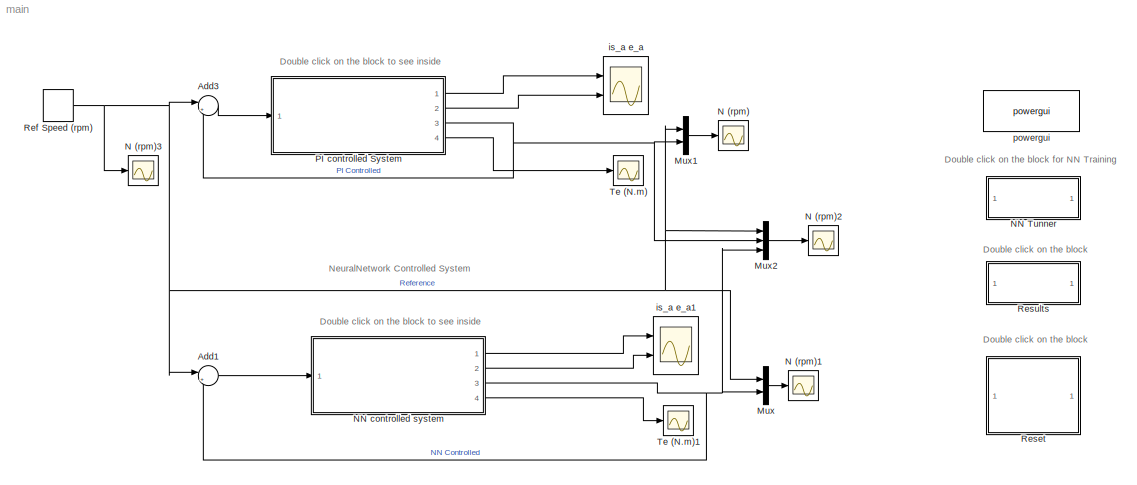
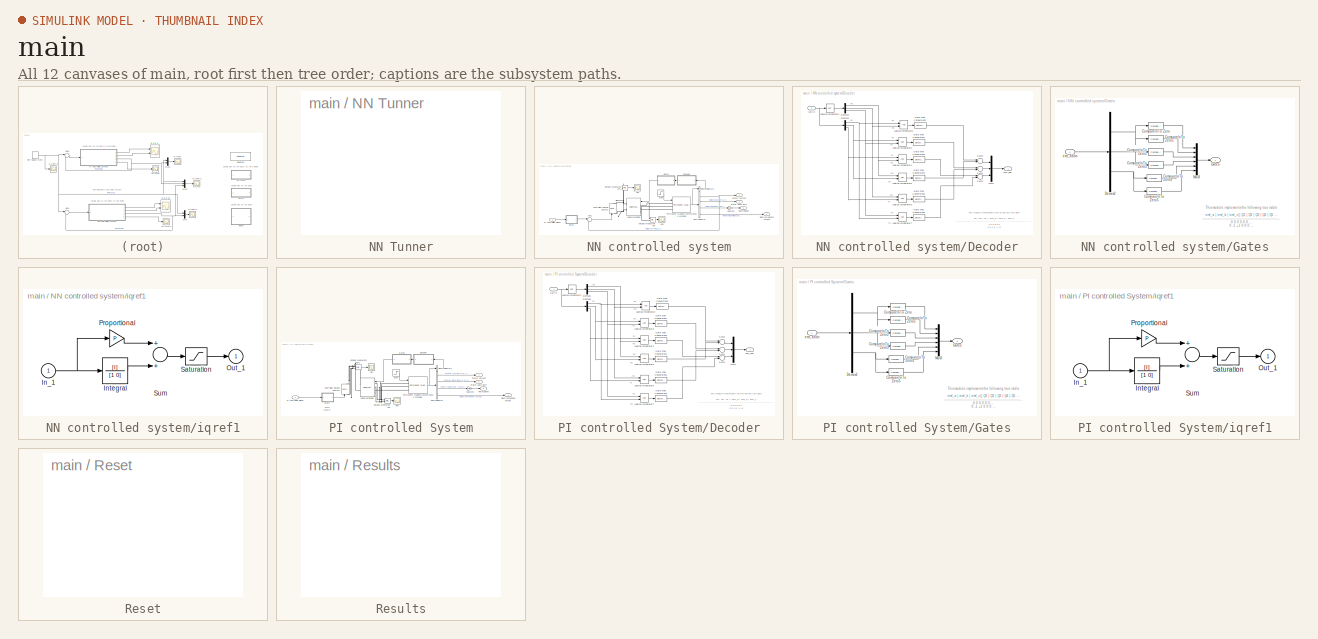
[diagram: thumbnail index - all 12 canvases of the model, root first then tree order]
MODEL main
KIND model
CONFIG PreLoadFcn = assignin('base','Ts',[5e-6])\nKi=16.61;\nKp=0.013;
BLOCK [Sum] Add1
  IconShape = round
  InputSameDT = off
  Inputs = |+-
  OutDataTypeStr = Inherit: Inherit via internal rule
  Ports = [2, 1]
  SID = 275
  SaturateOnIntegerOverflow = off
BLOCK [Sum] Add3
  IconShape = round
  InputSameDT = off
  Inputs = |+-
  OutDataTypeStr = Inherit: Inherit via internal rule
  Ports = [2, 1]
  SID = 1
  SaturateOnIntegerOverflow = off
BLOCK [Mux] Mux
  DisplayOption = bar
  Inputs = 2
  Ports = [2, 1]
  SID = 186
BLOCK [Mux] Mux1
  DisplayOption = bar
  Inputs = 2
  Ports = [2, 1]
  SID = 277
BLOCK [Mux] Mux2
  DisplayOption = bar
  Inputs = 3
  Ports = [3, 1]
  SID = 279
BLOCK [Scope] N (rpm)
  DataFormat = StructureWithTime
  Floating = off
  LimitDataPoints = off
  NumInputPorts = 1
  Ports = [1]
  SID = 4
  SampleTime = 0
  SaveName = N
  SaveToWorkspace = on
  ShowLegends = off
  TimeRange = 0.2
  YMax = 3500
  YMin = 0
  ZoomMode = yonly
BLOCK [Scope] N (rpm)1
  DataFormat = StructureWithTime
  Floating = off
  LimitDataPoints = off
  NumInputPorts = 1
  Ports = [1]
  SID = 5
  SampleTime = 0
  SaveName = N2
  SaveToWorkspace = on
  ShowLegends = off
  TimeRange = 0.2
  YMax = 3500
  YMin = 0
  ZoomMode = yonly
BLOCK [Scope] N (rpm)2
  Floating = off
  LimitDataPoints = off
  NumInputPorts = 1
  Ports = [1]
  SID = 278
  SampleTime = 0
  SaveName = N4
  SaveToWorkspace = on
  ShowLegends = off
  TimeRange = 0.2
  YMax = 3500
  YMin = 0
  ZoomMode = yonly
BLOCK [Scope] N (rpm)3
  Floating = off
  LimitDataPoints = off
  NumInputPorts = 1
  Ports = [1]
  SID = 373
  SampleTime = 0
  SaveName = N5
  SaveToWorkspace = on
  ShowLegends = off
  TimeRange = 0.2
  YMax = 3500
  YMin = 0
  ZoomMode = yonly
BLOCK [SubSystem] NN Tunner
  FunctionWithSeparateData = off
  MaskHideContents = off
  MinAlgLoopOccurrences = off
  Opaque = off
  OpenFcn = Ki=16.61;Kp=.013;                                                                  \nTs=5e-6;                                                                           \noptions=simset('solver','ode45','srcWorkspace','Current','DstWorkspace','Current');\nsim('Refmodel.slx',[0,0.1],options);                                               \na=N.signals.values(:,1);                                    ...<+642ch>
  Ports = []
  PropExecContextOutsideSubsystem = off
  RTWSystemCode = Auto
  RequestExecContextInheritance = off
  SID = 287
BLOCK [SubSystem] NN controlled system
  FunctionWithSeparateData = off
  MaskHideContents = off
  MinAlgLoopOccurrences = off
  Opaque = off
  Ports = [1, 4]
  PropExecContextOutsideSubsystem = off
  RTWSystemCode = Auto
  RequestExecContextInheritance = off
  SID = 6
BLOCK [Sum] NN controlled system/Add1
  IconShape = round
  InputSameDT = off
  Inputs = |+-
  OutDataTypeStr = Inherit: Inherit via internal rule
  Ports = [2, 1]
  SID = 271
  SaturateOnIntegerOverflow = off
BLOCK [BusSelector] NN controlled system/Bus\nSelector
  OutputSignals = Stator current is_a (A),Stator back EMF e_a (V),Rotor speed wm (rad/s),Electromagnetic torque Te (N*m)
  Ports = [1, 4]
  SID = 8
BLOCK [BusSelector] NN controlled system/Bus\nSelector1
  OutputAsBus = on
  OutputSignals = Hall effect signal h_a,Hall effect signal h_b,Hall effect signal h_c
  Ports = [1, 1]
  SID = 9
BLOCK [Reference] NN controlled system/Controlled Voltage Source1  REF=powerlib/Electrical\nSources/Controlled Voltage Source
  Amplitude = 500
  Frequency = 0
  Initialize = on
  Measurements = None
  Phase = 0
  Ports = [1, 0, 0, 0, 0, 1, 1]
  SID = 10
  SourceBlock = powerlib/Electrical\nSources/Controlled Voltage Source
  SourceType = Controlled Voltage Source
  Source_Type = AC
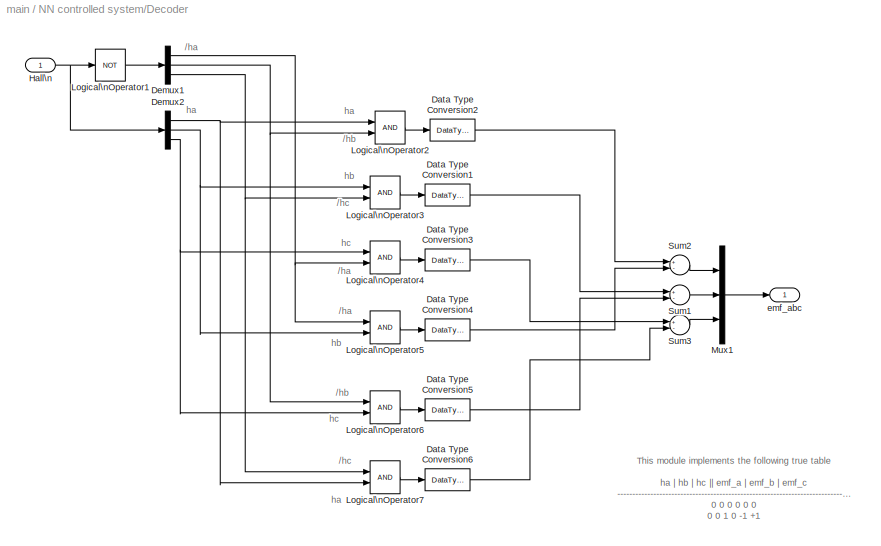
BLOCK [SubSystem] NN controlled system/Decoder
  FunctionWithSeparateData = off
  MaskHideContents = off
  MinAlgLoopOccurrences = off
  Opaque = off
  Ports = [1, 1]
  PropExecContextOutsideSubsystem = off
  RTWSystemCode = Auto
  RequestExecContextInheritance = off
  SID = 11
BLOCK [DataTypeConversion] NN controlled system/Decoder/Data Type Conversion1
  RndMeth = Floor
  SID = 13
  SaturateOnIntegerOverflow = off
BLOCK [DataTypeConversion] NN controlled system/Decoder/Data Type Conversion2
  RndMeth = Floor
  SID = 14
  SaturateOnIntegerOverflow = off
BLOCK [DataTypeConversion] NN controlled system/Decoder/Data Type Conversion3
  RndMeth = Floor
  SID = 15
  SaturateOnIntegerOverflow = off
BLOCK [DataTypeConversion] NN controlled system/Decoder/Data Type Conversion4
  RndMeth = Floor
  SID = 16
  SaturateOnIntegerOverflow = off
BLOCK [DataTypeConversion] NN controlled system/Decoder/Data Type Conversion5
  RndMeth = Floor
  SID = 17
  SaturateOnIntegerOverflow = off
BLOCK [DataTypeConversion] NN controlled system/Decoder/Data Type Conversion6
  RndMeth = Floor
  SID = 18
  SaturateOnIntegerOverflow = off
BLOCK [Demux] NN controlled system/Decoder/Demux1
  DisplayOption = bar
  Outputs = 3
  Ports = [1, 3]
  SID = 19
BLOCK [Demux] NN controlled system/Decoder/Demux2
  DisplayOption = bar
  Outputs = 3
  Ports = [1, 3]
  SID = 20
BLOCK [Inport] NN controlled system/Decoder/Hall\n
  IconDisplay = Port number
  SID = 12
BLOCK [Logic] NN controlled system/Decoder/Logical\nOperator1
  AllPortsSameDT = off
  Operator = NOT
  OutDataTypeStr = boolean
  Ports = [1, 1]
  SID = 21
BLOCK [Logic] NN controlled system/Decoder/Logical\nOperator2
  AllPortsSameDT = off
  OutDataTypeStr = boolean
  Ports = [2, 1]
  SID = 22
BLOCK [Logic] NN controlled system/Decoder/Logical\nOperator3
  AllPortsSameDT = off
  OutDataTypeStr = boolean
  Ports = [2, 1]
  SID = 23
BLOCK [Logic] NN controlled system/Decoder/Logical\nOperator4
  AllPortsSameDT = off
  OutDataTypeStr = boolean
  Ports = [2, 1]
  SID = 24
BLOCK [Logic] NN controlled system/Decoder/Logical\nOperator5
  AllPortsSameDT = off
  OutDataTypeStr = boolean
  Ports = [2, 1]
  SID = 25
BLOCK [Logic] NN controlled system/Decoder/Logical\nOperator6
  AllPortsSameDT = off
  OutDataTypeStr = boolean
  Ports = [2, 1]
  SID = 26
BLOCK [Logic] NN controlled system/Decoder/Logical\nOperator7
  AllPortsSameDT = off
  OutDataTypeStr = boolean
  Ports = [2, 1]
  SID = 27
BLOCK [Mux] NN controlled system/Decoder/Mux1
  DisplayOption = bar
  Inputs = 3
  Ports = [3, 1]
  SID = 28
BLOCK [Sum] NN controlled system/Decoder/Sum1
  InputSameDT = off
  Inputs = +-
  OutDataTypeStr = double
  Ports = [2, 1]
  SID = 29
  SaturateOnIntegerOverflow = off
BLOCK [Sum] NN controlled system/Decoder/Sum2
  InputSameDT = off
  Inputs = +-
  OutDataTypeStr = double
  Ports = [2, 1]
  SID = 30
  SaturateOnIntegerOverflow = off
BLOCK [Sum] NN controlled system/Decoder/Sum3
  InputSameDT = off
  Inputs = +-
  OutDataTypeStr = double
  Ports = [2, 1]
  SID = 31
  SaturateOnIntegerOverflow = off
BLOCK [Outport] NN controlled system/Decoder/emf_abc
  IconDisplay = Port number
  SID = 32
BLOCK [Outport] NN controlled system/Electromagnetic Torque
  IconDisplay = Port number
  Port = 4
  SID = 78
BLOCK [SubSystem] NN controlled system/Gates
  FunctionWithSeparateData = off
  MaskHideContents = off
  MinAlgLoopOccurrences = off
  Opaque = off
  Ports = [1, 1]
  PropExecContextOutsideSubsystem = off
  RTWSystemCode = Auto
  RequestExecContextInheritance = off
  SID = 48
BLOCK [Reference] NN controlled system/Gates/Compare\nTo Zero  REF=simulink/Logic and Bit\nOperations/Compare\nTo Zero
  OutDataTypeStr = boolean
  Ports = [1, 1]
  SID = 50
  SourceBlock = simulink/Logic and Bit\nOperations/Compare\nTo Zero
  SourceType = Compare To Zero
  ZeroCross = off
  relop = >
BLOCK [Reference] NN controlled system/Gates/Compare\nTo Zero1  REF=simulink/Logic and Bit\nOperations/Compare\nTo Zero
  OutDataTypeStr = boolean
  Ports = [1, 1]
  SID = 51
  SourceBlock = simulink/Logic and Bit\nOperations/Compare\nTo Zero
  SourceType = Compare To Zero
  ZeroCross = off
  relop = <
BLOCK [Reference] NN controlled system/Gates/Compare\nTo Zero2  REF=simulink/Logic and Bit\nOperations/Compare\nTo Zero
  OutDataTypeStr = boolean
  Ports = [1, 1]
  SID = 52
  SourceBlock = simulink/Logic and Bit\nOperations/Compare\nTo Zero
  SourceType = Compare To Zero
  ZeroCross = off
  relop = >
BLOCK [Reference] NN controlled system/Gates/Compare\nTo Zero3  REF=simulink/Logic and Bit\nOperations/Compare\nTo Zero
  OutDataTypeStr = boolean
  Ports = [1, 1]
  SID = 53
  SourceBlock = simulink/Logic and Bit\nOperations/Compare\nTo Zero
  SourceType = Compare To Zero
  ZeroCross = off
  relop = <
BLOCK [Reference] NN controlled system/Gates/Compare\nTo Zero4  REF=simulink/Logic and Bit\nOperations/Compare\nTo Zero
  OutDataTypeStr = boolean
  Ports = [1, 1]
  SID = 54
  SourceBlock = simulink/Logic and Bit\nOperations/Compare\nTo Zero
  SourceType = Compare To Zero
  ZeroCross = off
  relop = >
BLOCK [Reference] NN controlled system/Gates/Compare\nTo Zero5  REF=simulink/Logic and Bit\nOperations/Compare\nTo Zero
  OutDataTypeStr = boolean
  Ports = [1, 1]
  SID = 55
  SourceBlock = simulink/Logic and Bit\nOperations/Compare\nTo Zero
  SourceType = Compare To Zero
  ZeroCross = off
  relop = <
BLOCK [Demux] NN controlled system/Gates/Demux2
  DisplayOption = bar
  Outputs = 3
  Ports = [1, 3]
  SID = 56
BLOCK [Outport] NN controlled system/Gates/Gates
  IconDisplay = Port number
  SID = 58
BLOCK [Mux] NN controlled system/Gates/Mux3
  DisplayOption = bar
  Inputs = 6
  Ports = [6, 1]
  SID = 57
BLOCK [Inport] NN controlled system/Gates/emf_abc\n
  IconDisplay = Port number
  SID = 49
BLOCK [Inport] NN controlled system/PI controlled Signal
  IconDisplay = Port number
  SID = 7
BLOCK [Reference] NN controlled system/Permanent Magnet\nSynchronous Machine  REF=powerlib/Machines/Permanent Magnet\nSynchronous Machine
  Flat = 120
  Flux = 0.175
  FluxDistribution = Trapezoidal
  Inductance = 8.5e-3
  InitialConditions = [0,0, 0,0]
  InitialConditions5ph = [0 0 0 0 0 0]
  La = 0.000835
  MachineConstant = Flux linkage established by magnets (V.s)
  Mechanical = [ 0.8e-3, 1e-3,  4 ]
  MechanicalLoad = Torque Tm
  NbPhases = 3
  PolePairs = 4
  Ports = [1, 1, 0, 0, 0, 3]
  PresetModel = No
  RefAngle = 90 degrees behind phase A axis (modified Park)
  Resistance = 2.8750
  RotorType = Round
  SID = 60
  ShowDetailedParameters = on
  SourceBlock = powerlib/Machines/Permanent Magnet\nSynchronous Machine
  SourceType = Permanent Magnet Synchronous Machine
  TorqueCst = 1.4
  TsBlock = -1
  TsPowergui = 0
  VoltageCst = 146.6077
  dqInductances = [8.5e-3, 8.5e-3]
BLOCK [Outport] NN controlled system/RotorSpeed
  IconDisplay = Port number
  Port = 3
  SID = 77
BLOCK [Outport] NN controlled system/Stator Current
  IconDisplay = Port number
  SID = 75
BLOCK [Outport] NN controlled system/Stator back EMF
  IconDisplay = Port number
  Port = 2
  SID = 76
BLOCK [Step] NN controlled system/Step
  After = 3
  SID = 61
  SampleTime = Ts
  Time = .1
BLOCK [Reference] NN controlled system/Universal Bridge  REF=powerlib/Power\nElectronics/Universal Bridge
  Arms = 3
  Device = MOSFET / Diodes
  ForwardVoltage = 0
  ForwardVoltages = [  0  0  ]
  GTOparameters = [ 10e-6 , 20e-6 ]
  IGBTparameters = [ 1e-6 , 2e-6 ]
  Lon = 0
  Measurements = None
  Measurements_2 = None
  Ports = [1, 0, 0, 0, 0, 3, 2]
  Ron = 1e-3
  SID = 62
  SnubberCapacitance = 1e-6
  SnubberResistance = 5000
  SourceBlock = powerlib/Power\nElectronics/Universal Bridge
  SourceType = Universal Bridge
  converterType = Rectifier
BLOCK [Scope] NN controlled system/Vab
  DataFormat = Structure
  Floating = off
  LimitDataPoints = off
  NumInputPorts = 1
  Ports = [1]
  SID = 63
  SampleTime = 0
  ShowLegends = off
  TimeRange = 0.06
  YMax = 10000
  YMin = -10000
  ZoomMode = xonly
BLOCK [Scope] NN controlled system/Vdc
  DataFormat = Structure
  Floating = off
  LimitDataPoints = off
  NumInputPorts = 1
  Ports = [1]
  SID = 64
  SampleTime = 0
  SaveName = ScopeData1
  ShowLegends = off
  TimeRange = 0.2
  YMax = 500
  YMin = 0
  ZoomMode = xonly
BLOCK [Reference] NN controlled system/Voltage Measurement  REF=powerlib/Measurements/Voltage Measurement
  OutputType = Complex
  PSBequivalent = 0
  PhasorSimulation = off
  Ports = [0, 1, 0, 0, 0, 2]
  SID = 65
  SourceBlock = powerlib/Measurements/Voltage Measurement
  SourceType = Voltage Measurement
BLOCK [Reference] NN controlled system/Voltage Measurement1  REF=powerlib/Measurements/Voltage Measurement
  OutputType = Complex
  PSBequivalent = 0
  PhasorSimulation = off
  Ports = [0, 1, 0, 0, 0, 2]
  SID = 66
  SourceBlock = powerlib/Measurements/Voltage Measurement
  SourceType = Voltage Measurement
BLOCK [SubSystem] NN controlled system/iqref1
  FunctionWithSeparateData = off
  MaskHideContents = off
  MinAlgLoopOccurrences = off
  Opaque = off
  Ports = [1, 1]
  PropExecContextOutsideSubsystem = off
  RTWSystemCode = Auto
  RequestExecContextInheritance = off
  SID = 280
BLOCK [Inport] NN controlled system/iqref1/In_1
  IconDisplay = Port number
  SID = 281
BLOCK [TransferFcn] NN controlled system/iqref1/Integral
  Denominator = [1 0]
  Numerator = [I]
  SID = 282
BLOCK [Outport] NN controlled system/iqref1/Out_1
  IconDisplay = Port number
  InitialOutput = 0
  SID = 286
BLOCK [Gain] NN controlled system/iqref1/Proportional
  Gain = P
  SID = 283
BLOCK [Saturate] NN controlled system/iqref1/Saturation
  InputPortMap = u0
  LowerLimit = min
  Ports = [1, 1]
  SID = 284
  UpperLimit = max
BLOCK [Sum] NN controlled system/iqref1/Sum
  Ports = [2, 1]
  SID = 285
BLOCK [Gain] NN controlled system/rad2rpm
  Gain = 30/pi
  OutDataTypeStr = Inherit: Inherit via internal rule
  ParamDataTypeStr = Inherit: Inherit via internal rule
  SID = 74
  SaturateOnIntegerOverflow = off
BLOCK [SubSystem] PI controlled System
  FunctionWithSeparateData = off
  MaskHideContents = off
  MinAlgLoopOccurrences = off
  Opaque = off
  Ports = [1, 4]
  PropExecContextOutsideSubsystem = off
  RTWSystemCode = Auto
  RequestExecContextInheritance = off
  SID = 80
BLOCK [BusSelector] PI controlled System/Bus\nSelector
  OutputSignals = Stator current is_a (A),Stator back EMF e_a (V),Rotor speed wm (rad/s),Electromagnetic torque Te (N*m)
  Ports = [1, 4]
  SID = 82
BLOCK [BusSelector] PI controlled System/Bus\nSelector1
  OutputAsBus = on
  OutputSignals = Hall effect signal h_a,Hall effect signal h_b,Hall effect signal h_c
  Ports = [1, 1]
  SID = 83
BLOCK [Reference] PI controlled System/Controlled Voltage Source1  REF=powerlib/Electrical\nSources/Controlled Voltage Source
  Amplitude = 500
  Frequency = 0
  Initialize = on
  Measurements = None
  Phase = 0
  Ports = [1, 0, 0, 0, 0, 1, 1]
  SID = 84
  SourceBlock = powerlib/Electrical\nSources/Controlled Voltage Source
  SourceType = Controlled Voltage Source
  Source_Type = AC
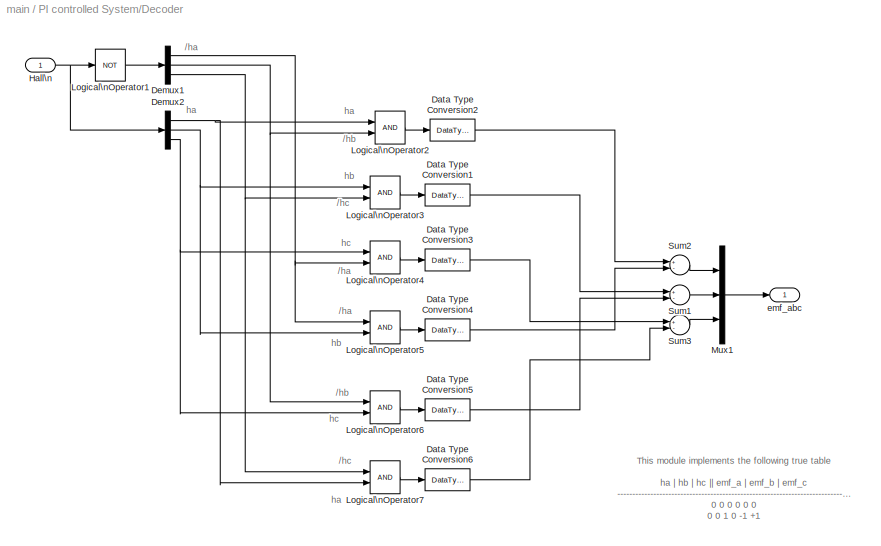
BLOCK [SubSystem] PI controlled System/Decoder
  FunctionWithSeparateData = off
  MaskHideContents = off
  MinAlgLoopOccurrences = off
  Opaque = off
  Ports = [1, 1]
  PropExecContextOutsideSubsystem = off
  RTWSystemCode = Auto
  RequestExecContextInheritance = off
  SID = 85
BLOCK [DataTypeConversion] PI controlled System/Decoder/Data Type Conversion1
  RndMeth = Floor
  SID = 87
  SaturateOnIntegerOverflow = off
BLOCK [DataTypeConversion] PI controlled System/Decoder/Data Type Conversion2
  RndMeth = Floor
  SID = 88
  SaturateOnIntegerOverflow = off
BLOCK [DataTypeConversion] PI controlled System/Decoder/Data Type Conversion3
  RndMeth = Floor
  SID = 89
  SaturateOnIntegerOverflow = off
BLOCK [DataTypeConversion] PI controlled System/Decoder/Data Type Conversion4
  RndMeth = Floor
  SID = 90
  SaturateOnIntegerOverflow = off
BLOCK [DataTypeConversion] PI controlled System/Decoder/Data Type Conversion5
  RndMeth = Floor
  SID = 91
  SaturateOnIntegerOverflow = off
BLOCK [DataTypeConversion] PI controlled System/Decoder/Data Type Conversion6
  RndMeth = Floor
  SID = 92
  SaturateOnIntegerOverflow = off
BLOCK [Demux] PI controlled System/Decoder/Demux1
  DisplayOption = bar
  Outputs = 3
  Ports = [1, 3]
  SID = 93
BLOCK [Demux] PI controlled System/Decoder/Demux2
  DisplayOption = bar
  Outputs = 3
  Ports = [1, 3]
  SID = 94
BLOCK [Inport] PI controlled System/Decoder/Hall\n
  IconDisplay = Port number
  SID = 86
BLOCK [Logic] PI controlled System/Decoder/Logical\nOperator1
  AllPortsSameDT = off
  Operator = NOT
  OutDataTypeStr = boolean
  Ports = [1, 1]
  SID = 95
BLOCK [Logic] PI controlled System/Decoder/Logical\nOperator2
  AllPortsSameDT = off
  OutDataTypeStr = boolean
  Ports = [2, 1]
  SID = 96
BLOCK [Logic] PI controlled System/Decoder/Logical\nOperator3
  AllPortsSameDT = off
  OutDataTypeStr = boolean
  Ports = [2, 1]
  SID = 97
BLOCK [Logic] PI controlled System/Decoder/Logical\nOperator4
  AllPortsSameDT = off
  OutDataTypeStr = boolean
  Ports = [2, 1]
  SID = 98
BLOCK [Logic] PI controlled System/Decoder/Logical\nOperator5
  AllPortsSameDT = off
  OutDataTypeStr = boolean
  Ports = [2, 1]
  SID = 99
BLOCK [Logic] PI controlled System/Decoder/Logical\nOperator6
  AllPortsSameDT = off
  OutDataTypeStr = boolean
  Ports = [2, 1]
  SID = 100
BLOCK [Logic] PI controlled System/Decoder/Logical\nOperator7
  AllPortsSameDT = off
  OutDataTypeStr = boolean
  Ports = [2, 1]
  SID = 101
BLOCK [Mux] PI controlled System/Decoder/Mux1
  DisplayOption = bar
  Inputs = 3
  Ports = [3, 1]
  SID = 102
BLOCK [Sum] PI controlled System/Decoder/Sum1
  InputSameDT = off
  Inputs = +-
  OutDataTypeStr = double
  Ports = [2, 1]
  SID = 103
  SaturateOnIntegerOverflow = off
BLOCK [Sum] PI controlled System/Decoder/Sum2
  InputSameDT = off
  Inputs = +-
  OutDataTypeStr = double
  Ports = [2, 1]
  SID = 104
  SaturateOnIntegerOverflow = off
BLOCK [Sum] PI controlled System/Decoder/Sum3
  InputSameDT = off
  Inputs = +-
  OutDataTypeStr = double
  Ports = [2, 1]
  SID = 105
  SaturateOnIntegerOverflow = off
BLOCK [Outport] PI controlled System/Decoder/emf_abc
  IconDisplay = Port number
  SID = 106
BLOCK [Outport] PI controlled System/Electromagnetic Torque
  IconDisplay = Port number
  Port = 4
  SID = 152
BLOCK [SubSystem] PI controlled System/Gates
  FunctionWithSeparateData = off
  MaskHideContents = off
  MinAlgLoopOccurrences = off
  Opaque = off
  Ports = [1, 1]
  PropExecContextOutsideSubsystem = off
  RTWSystemCode = Auto
  RequestExecContextInheritance = off
  SID = 122
BLOCK [Reference] PI controlled System/Gates/Compare\nTo Zero  REF=simulink/Logic and Bit\nOperations/Compare\nTo Zero
  OutDataTypeStr = boolean
  Ports = [1, 1]
  SID = 124
  SourceBlock = simulink/Logic and Bit\nOperations/Compare\nTo Zero
  SourceType = Compare To Zero
  ZeroCross = off
  relop = >
BLOCK [Reference] PI controlled System/Gates/Compare\nTo Zero1  REF=simulink/Logic and Bit\nOperations/Compare\nTo Zero
  OutDataTypeStr = boolean
  Ports = [1, 1]
  SID = 125
  SourceBlock = simulink/Logic and Bit\nOperations/Compare\nTo Zero
  SourceType = Compare To Zero
  ZeroCross = off
  relop = <
BLOCK [Reference] PI controlled System/Gates/Compare\nTo Zero2  REF=simulink/Logic and Bit\nOperations/Compare\nTo Zero
  OutDataTypeStr = boolean
  Ports = [1, 1]
  SID = 126
  SourceBlock = simulink/Logic and Bit\nOperations/Compare\nTo Zero
  SourceType = Compare To Zero
  ZeroCross = off
  relop = >
BLOCK [Reference] PI controlled System/Gates/Compare\nTo Zero3  REF=simulink/Logic and Bit\nOperations/Compare\nTo Zero
  OutDataTypeStr = boolean
  Ports = [1, 1]
  SID = 127
  SourceBlock = simulink/Logic and Bit\nOperations/Compare\nTo Zero
  SourceType = Compare To Zero
  ZeroCross = off
  relop = <
BLOCK [Reference] PI controlled System/Gates/Compare\nTo Zero4  REF=simulink/Logic and Bit\nOperations/Compare\nTo Zero
  OutDataTypeStr = boolean
  Ports = [1, 1]
  SID = 128
  SourceBlock = simulink/Logic and Bit\nOperations/Compare\nTo Zero
  SourceType = Compare To Zero
  ZeroCross = off
  relop = >
BLOCK [Reference] PI controlled System/Gates/Compare\nTo Zero5  REF=simulink/Logic and Bit\nOperations/Compare\nTo Zero
  OutDataTypeStr = boolean
  Ports = [1, 1]
  SID = 129
  SourceBlock = simulink/Logic and Bit\nOperations/Compare\nTo Zero
  SourceType = Compare To Zero
  ZeroCross = off
  relop = <
BLOCK [Demux] PI controlled System/Gates/Demux2
  DisplayOption = bar
  Outputs = 3
  Ports = [1, 3]
  SID = 130
BLOCK [Outport] PI controlled System/Gates/Gates
  IconDisplay = Port number
  SID = 132
BLOCK [Mux] PI controlled System/Gates/Mux3
  DisplayOption = bar
  Inputs = 6
  Ports = [6, 1]
  SID = 131
BLOCK [Inport] PI controlled System/Gates/emf_abc\n
  IconDisplay = Port number
  SID = 123
BLOCK [Inport] PI controlled System/PI controlled Signal
  IconDisplay = Port number
  SID = 81
BLOCK [Reference] PI controlled System/Permanent Magnet\nSynchronous Machine  REF=powerlib/Machines/Permanent Magnet\nSynchronous Machine
  Flat = 120
  Flux = 0.175
  FluxDistribution = Trapezoidal
  Inductance = 8.5e-3
  InitialConditions = [0,0, 0,0]
  InitialConditions5ph = [0 0 0 0 0 0]
  La = 0.000835
  MachineConstant = Flux linkage established by magnets (V.s)
  Mechanical = [ 0.8e-3, 1e-3,  4 ]
  MechanicalLoad = Torque Tm
  NbPhases = 3
  PolePairs = 4
  Ports = [1, 1, 0, 0, 0, 3]
  PresetModel = No
  RefAngle = 90 degrees behind phase A axis (modified Park)
  Resistance = 2.8750
  RotorType = Round
  SID = 134
  ShowDetailedParameters = on
  SourceBlock = powerlib/Machines/Permanent Magnet\nSynchronous Machine
  SourceType = Permanent Magnet Synchronous Machine
  TorqueCst = 1.4
  TsBlock = -1
  TsPowergui = 0
  VoltageCst = 146.6077
  dqInductances = [8.5e-3, 8.5e-3]
BLOCK [Outport] PI controlled System/RotorSpeed
  IconDisplay = Port number
  Port = 3
  SID = 151
BLOCK [Outport] PI controlled System/Stator Current
  IconDisplay = Port number
  SID = 149
BLOCK [Outport] PI controlled System/Stator back EMF
  IconDisplay = Port number
  Port = 2
  SID = 150
BLOCK [Step] PI controlled System/Step
  After = 3
  SID = 135
  SampleTime = 0
  Time = .1
BLOCK [Reference] PI controlled System/Universal Bridge  REF=powerlib/Power\nElectronics/Universal Bridge
  Arms = 3
  Device = MOSFET / Diodes
  ForwardVoltage = 0
  ForwardVoltages = [  0  0  ]
  GTOparameters = [ 10e-6 , 20e-6 ]
  IGBTparameters = [ 1e-6 , 2e-6 ]
  Lon = 0
  Measurements = None
  Measurements_2 = None
  Ports = [1, 0, 0, 0, 0, 3, 2]
  Ron = 1e-3
  SID = 136
  SnubberCapacitance = 1e-6
  SnubberResistance = 5000
  SourceBlock = powerlib/Power\nElectronics/Universal Bridge
  SourceType = Universal Bridge
  converterType = Rectifier
BLOCK [Scope] PI controlled System/Vab
  DataFormat = Structure
  Floating = off
  LimitDataPoints = off
  NumInputPorts = 1
  Ports = [1]
  SID = 137
  SampleTime = 0
  ShowLegends = off
  TimeRange = 0.06
  YMax = 10000
  YMin = -10000
  ZoomMode = xonly
BLOCK [Scope] PI controlled System/Vdc
  DataFormat = Structure
  Floating = off
  LimitDataPoints = off
  NumInputPorts = 1
  Ports = [1]
  SID = 138
  SampleTime = 0
  SaveName = ScopeData1
  ShowLegends = off
  TimeRange = 0.2
  YMax = 500
  YMin = 0
  ZoomMode = xonly
BLOCK [Reference] PI controlled System/Voltage Measurement  REF=powerlib/Measurements/Voltage Measurement
  OutputType = Complex
  PSBequivalent = 0
  PhasorSimulation = off
  Ports = [0, 1, 0, 0, 0, 2]
  SID = 139
  SourceBlock = powerlib/Measurements/Voltage Measurement
  SourceType = Voltage Measurement
BLOCK [Reference] PI controlled System/Voltage Measurement1  REF=powerlib/Measurements/Voltage Measurement
  OutputType = Complex
  PSBequivalent = 0
  PhasorSimulation = off
  Ports = [0, 1, 0, 0, 0, 2]
  SID = 140
  SourceBlock = powerlib/Measurements/Voltage Measurement
  SourceType = Voltage Measurement
BLOCK [SubSystem] PI controlled System/iqref1
  FunctionWithSeparateData = off
  MaskHideContents = off
  MinAlgLoopOccurrences = off
  Opaque = off
  Ports = [1, 1]
  PropExecContextOutsideSubsystem = off
  RTWSystemCode = Auto
  RequestExecContextInheritance = off
  SID = 141
BLOCK [Inport] PI controlled System/iqref1/In_1
  IconDisplay = Port number
  SID = 142
BLOCK [TransferFcn] PI controlled System/iqref1/Integral
  Denominator = [1 0]
  Numerator = [I]
  SID = 143
BLOCK [Outport] PI controlled System/iqref1/Out_1
  IconDisplay = Port number
  InitialOutput = 0
  SID = 147
BLOCK [Gain] PI controlled System/iqref1/Proportional
  Gain = P
  SID = 144
BLOCK [Saturate] PI controlled System/iqref1/Saturation
  InputPortMap = u0
  LowerLimit = min
  Ports = [1, 1]
  SID = 145
  UpperLimit = max
BLOCK [Sum] PI controlled System/iqref1/Sum
  Ports = [2, 1]
  SID = 146
BLOCK [Gain] PI controlled System/rad2rpm
  Gain = 30/pi
  OutDataTypeStr = Inherit: Inherit via internal rule
  ParamDataTypeStr = Inherit: Inherit via internal rule
  SID = 148
  SaturateOnIntegerOverflow = off
BLOCK [DiscretePulseGenerator] Ref Speed (rpm)
  Amplitude = 3000
  Period = 0.1
  Ports = [0, 1]
  PulseType = Time based
  PulseWidth = 5
  SID = 372
BLOCK [SubSystem] Reset
  FunctionWithSeparateData = off
  MaskHideContents = off
  MinAlgLoopOccurrences = off
  Opaque = off
  OpenFcn = clear all        \nclose all        \nKi=16.61;Kp=.013;\nTs=5e-6;
  Ports = []
  PropExecContextOutsideSubsystem = off
  RTWSystemCode = Auto
  RequestExecContextInheritance = off
  SID = 363
BLOCK [SubSystem] Results
  FunctionWithSeparateData = off
  MaskHideContents = off
  MinAlgLoopOccurrences = off
  Opaque = off
  OpenFcn = figure                                                                                      \nplot(N.time,N.signals.values(:,1),N.time,N.signals.values(:,2),'r','LineWidth',2)           \nhold on                                                                                     \nplot(N2.time,N2.signals.values(:,2),'g','LineWidth',2)                                      \nlegend('Reference Speed'...<+1227ch>
  Ports = []
  PropExecContextOutsideSubsystem = off
  RTWSystemCode = Auto
  RequestExecContextInheritance = off
  SID = 361
BLOCK [Scope] Te (N.m)
  DataFormat = StructureWithTime
  Floating = off
  LimitDataPoints = off
  NumInputPorts = 1
  Ports = [1]
  SID = 154
  SampleTime = 0
  SaveName = N1
  SaveToWorkspace = on
  ShowLegends = off
  TimeRange = 0.2
  YMax = 3500
  YMin = 0
  ZoomMode = yonly
BLOCK [Scope] Te (N.m)1
  DataFormat = StructureWithTime
  Floating = off
  LimitDataPoints = off
  NumInputPorts = 1
  Ports = [1]
  SID = 155
  SampleTime = 0
  SaveName = N3
  SaveToWorkspace = on
  ShowLegends = off
  TimeRange = 0.2
  YMax = 3500
  YMin = 0
  ZoomMode = yonly
BLOCK [Scope] is_a e_a
  DataFormat = StructureWithTime
  Floating = off
  LimitDataPoints = off
  NumInputPorts = 2
  Ports = [2]
  SID = 156
  SampleTime = 0
  SaveName = IE
  SaveToWorkspace = on
  ShowLegends = off
  TimeRange = 0.2
  YMax = 20~250
  YMin = -15~-250
  ZoomMode = yonly
BLOCK [Scope] is_a e_a1
  DataFormat = StructureWithTime
  Floating = off
  LimitDataPoints = off
  NumInputPorts = 2
  Ports = [2]
  SID = 157
  SampleTime = 0
  SaveName = IE1
  SaveToWorkspace = on
  ShowLegends = off
  TimeRange = 0.2
  YMax = 20~250
  YMin = -15~-250
  ZoomMode = yonly
BLOCK [Reference] powergui  REF=powerlib/powergui
  DisableRonSwitches = off
  DisableSnubberDevices = off
  DisableVfSwitches = off
  DisplayEquations = off
  DisplayStyle = 1
  EnableUseOfTLC = off
  ErrMax = 1e-4
  Frange = [0:2:500]
  FreqAxis = off
  FunctionMessages = off
  HookPort = off
  Interpol = off
  Iterations = 50
  MaxFrequency = 1000
  Pbase = 100e6
  Ports = []
  Priority = 2
  ResistiveCurrentMeasurement = off
  RestoreLinks = warning
  RmsSteady = 1
  SID = 158
  SPID = off
  SampleTime = Ts
  ShowGrid = off
  SolverType = Tustin
  SourceBlock = powerlib/powergui
  SourceType = PSB option menu block
  StartTime = 0.0
  SwTol = 0
  Ts = 0
  UnitsV = kV
  UnitsW = MW
  UserData = DataTag0
  UserDataPersistent = on
  Xlog = on
  Ylog = off
  ZoomFFT = on
  cycles = 1
  display = off
  echomessages = off
  frequency = 60
  frequencyindice = 0
  frequencyindicesteady = 1
  fundamental = 60
  methode = off
  save = off
  variable = ZData
  x0status = blocks
ANNOTATION (root): Double click on the block
ANNOTATION (root): Double click on the block for NN Training
ANNOTATION (root): Double click on the block to see inside
ANNOTATION (root): NeuralNetwork Controlled System
ANNOTATION NN controlled system/Decoder: /ha
ANNOTATION NN controlled system/Decoder: /hb
ANNOTATION NN controlled system/Decoder: /hc
ANNOTATION NN controlled system/Decoder: This module implements the following true table\n\n ha | hb | hc || emf_a | emf_b | emf_c\n --------------------------------------------------------------------------------\n0 0 0 0 0 0 \n0 0 1 0 -1 +1\n0 1 0 -1 +1 0\n0 1 1 -1 0 +1\n1 0 0 +1 0 -1\n1 0 1 +1 -1 0\n1 1 0 0 +1 -1\n1 1 1 0 0 0\n
ANNOTATION NN controlled system/Decoder: ha
ANNOTATION NN controlled system/Decoder: hb
ANNOTATION NN controlled system/Decoder: hc
ANNOTATION NN controlled system/Gates: This module implements the following true table\n\n emf_a | emf_b | emf_c || Q1 | Q2 | Q3 | Q4 | Q5 | Q6\n ------------------------------------------------------------------------------------------------------------------\n 0 0 0 0 0 0 0 0 0\n 0 -1 +1 0 0 0 1 1 0\n -1 +1 0 0 1 1 0 0 0\n -1 0 +1 0 1 0 0 1 0\n +1 0 -1 1 0 0 0 0 1\n +1 -1 0 1 0 0 1 0 0\n 0 +1 -1 0 0 1 0 0 1\n 0 0 0 0 0 0 0 0 0\n
ANNOTATION PI controlled System: Speed \nregulator
ANNOTATION PI controlled System/Decoder: /ha
ANNOTATION PI controlled System/Decoder: /hb
ANNOTATION PI controlled System/Decoder: /hc
ANNOTATION PI controlled System/Decoder: This module implements the following true table\n\n ha | hb | hc || emf_a | emf_b | emf_c\n --------------------------------------------------------------------------------\n0 0 0 0 0 0 \n0 0 1 0 -1 +1\n0 1 0 -1 +1 0\n0 1 1 -1 0 +1\n1 0 0 +1 0 -1\n1 0 1 +1 -1 0\n1 1 0 0 +1 -1\n1 1 1 0 0 0\n
ANNOTATION PI controlled System/Decoder: ha
ANNOTATION PI controlled System/Decoder: hb
ANNOTATION PI controlled System/Decoder: hc
ANNOTATION PI controlled System/Gates: This module implements the following true table\n\n emf_a | emf_b | emf_c || Q1 | Q2 | Q3 | Q4 | Q5 | Q6\n ------------------------------------------------------------------------------------------------------------------\n 0 0 0 0 0 0 0 0 0\n 0 -1 +1 0 0 0 1 1 0\n -1 +1 0 0 1 1 0 0 0\n -1 0 +1 0 1 0 0 1 0\n +1 0 -1 1 0 0 0 0 1\n +1 -1 0 1 0 0 1 0 0\n 0 +1 -1 0 0 1 0 0 1\n 0 0 0 0 0 0 0 0 0\n
LINE Add1:1 -> NN controlled system:1
LINE Add3:1 -> PI controlled System:1
LINE Mux1:1 -> N (rpm):1
LINE Mux2:1 -> N (rpm)2:1
LINE Mux:1 -> N (rpm)1:1
LINE NN controlled system/Add1:1 -> NN controlled system/Controlled Voltage Source1:1
LINE NN controlled system/Bus\nSelector1:1 -> NN controlled system/Decoder:1
NET NN controlled system/Bus\nSelector:1 -> NN controlled system/Add1:2, NN controlled system/Stator Current:1
LINE NN controlled system/Bus\nSelector:2 -> NN controlled system/Stator back EMF:1
LINE NN controlled system/Bus\nSelector:3 -> NN controlled system/rad2rpm:1
LINE NN controlled system/Bus\nSelector:4 -> NN controlled system/Electromagnetic Torque:1
LINE NN controlled system/Decoder/Data Type Conversion1:1 -> NN controlled system/Decoder/Sum1:1
LINE NN controlled system/Decoder/Data Type Conversion2:1 -> NN controlled system/Decoder/Sum2:1
LINE NN controlled system/Decoder/Data Type Conversion3:1 -> NN controlled system/Decoder/Sum3:1
LINE NN controlled system/Decoder/Data Type Conversion4:1 -> NN controlled system/Decoder/Sum2:2
LINE NN controlled system/Decoder/Data Type Conversion5:1 -> NN controlled system/Decoder/Sum1:2
LINE NN controlled system/Decoder/Data Type Conversion6:1 -> NN controlled system/Decoder/Sum3:2
NET NN controlled system/Decoder/Demux1:1 -> NN controlled system/Decoder/Logical\nOperator4:2, NN controlled system/Decoder/Logical\nOperator5:1
NET NN controlled system/Decoder/Demux1:2 -> NN controlled system/Decoder/Logical\nOperator2:2, NN controlled system/Decoder/Logical\nOperator6:1
NET NN controlled system/Decoder/Demux1:3 -> NN controlled system/Decoder/Logical\nOperator3:2, NN controlled system/Decoder/Logical\nOperator7:1
NET NN controlled system/Decoder/Demux2:1 -> NN controlled system/Decoder/Logical\nOperator2:1, NN controlled system/Decoder/Logical\nOperator7:2
NET NN controlled system/Decoder/Demux2:2 -> NN controlled system/Decoder/Logical\nOperator3:1, NN controlled system/Decoder/Logical\nOperator5:2
NET NN controlled system/Decoder/Demux2:3 -> NN controlled system/Decoder/Logical\nOperator4:1, NN controlled system/Decoder/Logical\nOperator6:2
NET NN controlled system/Decoder/Hall\n:1 -> NN controlled system/Decoder/Demux2:1, NN controlled system/Decoder/Logical\nOperator1:1
LINE NN controlled system/Decoder/Logical\nOperator1:1 -> NN controlled system/Decoder/Demux1:1
LINE NN controlled system/Decoder/Logical\nOperator2:1 -> NN controlled system/Decoder/Data Type Conversion2:1
LINE NN controlled system/Decoder/Logical\nOperator3:1 -> NN controlled system/Decoder/Data Type Conversion1:1
LINE NN controlled system/Decoder/Logical\nOperator4:1 -> NN controlled system/Decoder/Data Type Conversion3:1
LINE NN controlled system/Decoder/Logical\nOperator5:1 -> NN controlled system/Decoder/Data Type Conversion4:1
LINE NN controlled system/Decoder/Logical\nOperator6:1 -> NN controlled system/Decoder/Data Type Conversion5:1
LINE NN controlled system/Decoder/Logical\nOperator7:1 -> NN controlled system/Decoder/Data Type Conversion6:1
LINE NN controlled system/Decoder/Mux1:1 -> NN controlled system/Decoder/emf_abc:1
LINE NN controlled system/Decoder/Sum1:1 -> NN controlled system/Decoder/Mux1:2
LINE NN controlled system/Decoder/Sum2:1 -> NN controlled system/Decoder/Mux1:1
LINE NN controlled system/Decoder/Sum3:1 -> NN controlled system/Decoder/Mux1:3
LINE NN controlled system/Decoder:1 -> NN controlled system/Gates:1
LINE NN controlled system/Gates/Compare\nTo Zero1:1 -> NN controlled system/Gates/Mux3:2
LINE NN controlled system/Gates/Compare\nTo Zero2:1 -> NN controlled system/Gates/Mux3:3
LINE NN controlled system/Gates/Compare\nTo Zero3:1 -> NN controlled system/Gates/Mux3:4
LINE NN controlled system/Gates/Compare\nTo Zero4:1 -> NN controlled system/Gates/Mux3:5
LINE NN controlled system/Gates/Compare\nTo Zero5:1 -> NN controlled system/Gates/Mux3:6
LINE NN controlled system/Gates/Compare\nTo Zero:1 -> NN controlled system/Gates/Mux3:1
NET NN controlled system/Gates/Demux2:1 -> NN controlled system/Gates/Compare\nTo Zero1:1, NN controlled system/Gates/Compare\nTo Zero:1
NET NN controlled system/Gates/Demux2:2 -> NN controlled system/Gates/Compare\nTo Zero2:1, NN controlled system/Gates/Compare\nTo Zero3:1
NET NN controlled system/Gates/Demux2:3 -> NN controlled system/Gates/Compare\nTo Zero4:1, NN controlled system/Gates/Compare\nTo Zero5:1
LINE NN controlled system/Gates/Mux3:1 -> NN controlled system/Gates/Gates:1
LINE NN controlled system/Gates/emf_abc\n:1 -> NN controlled system/Gates/Demux2:1
LINE NN controlled system/Gates:1 -> NN controlled system/Universal Bridge:1
LINE NN controlled system/PI controlled Signal:1 -> NN controlled system/iqref1:1
NET NN controlled system/Permanent Magnet\nSynchronous Machine:1 -> NN controlled system/Bus\nSelector1:1, NN controlled system/Bus\nSelector:1
LINE NN controlled system/Step:1 -> NN controlled system/Permanent Magnet\nSynchronous Machine:1
LINE NN controlled system/Voltage Measurement1:1 -> NN controlled system/Vdc:1
LINE NN controlled system/Voltage Measurement:1 -> NN controlled system/Vab:1
NET NN controlled system/iqref1/In_1:1 -> NN controlled system/iqref1/Integral:1, NN controlled system/iqref1/Proportional:1
LINE NN controlled system/iqref1/Integral:1 -> NN controlled system/iqref1/Sum:2
LINE NN controlled system/iqref1/Proportional:1 -> NN controlled system/iqref1/Sum:1
LINE NN controlled system/iqref1/Saturation:1 -> NN controlled system/iqref1/Out_1:1
LINE NN controlled system/iqref1/Sum:1 -> NN controlled system/iqref1/Saturation:1
LINE NN controlled system/iqref1:1 -> NN controlled system/Add1:1
LINE NN controlled system/rad2rpm:1 -> NN controlled system/RotorSpeed:1
LINE NN controlled system:1 -> is_a e_a1:1
LINE NN controlled system:2 -> is_a e_a1:2
NET NN controlled system:3 -> Add1:2, Mux2:3, Mux:2
LINE NN controlled system:4 -> Te (N.m)1:1
LINE PI controlled System/Bus\nSelector1:1 -> PI controlled System/Decoder:1
LINE PI controlled System/Bus\nSelector:1 -> PI controlled System/Stator Current:1
LINE PI controlled System/Bus\nSelector:2 -> PI controlled System/Stator back EMF:1
LINE PI controlled System/Bus\nSelector:3 -> PI controlled System/rad2rpm:1
LINE PI controlled System/Bus\nSelector:4 -> PI controlled System/Electromagnetic Torque:1
LINE PI controlled System/Decoder/Data Type Conversion1:1 -> PI controlled System/Decoder/Sum1:1
LINE PI controlled System/Decoder/Data Type Conversion2:1 -> PI controlled System/Decoder/Sum2:1
LINE PI controlled System/Decoder/Data Type Conversion3:1 -> PI controlled System/Decoder/Sum3:1
LINE PI controlled System/Decoder/Data Type Conversion4:1 -> PI controlled System/Decoder/Sum2:2
LINE PI controlled System/Decoder/Data Type Conversion5:1 -> PI controlled System/Decoder/Sum1:2
LINE PI controlled System/Decoder/Data Type Conversion6:1 -> PI controlled System/Decoder/Sum3:2
NET PI controlled System/Decoder/Demux1:1 -> PI controlled System/Decoder/Logical\nOperator4:2, PI controlled System/Decoder/Logical\nOperator5:1
NET PI controlled System/Decoder/Demux1:2 -> PI controlled System/Decoder/Logical\nOperator2:2, PI controlled System/Decoder/Logical\nOperator6:1
NET PI controlled System/Decoder/Demux1:3 -> PI controlled System/Decoder/Logical\nOperator3:2, PI controlled System/Decoder/Logical\nOperator7:1
NET PI controlled System/Decoder/Demux2:1 -> PI controlled System/Decoder/Logical\nOperator2:1, PI controlled System/Decoder/Logical\nOperator7:2
NET PI controlled System/Decoder/Demux2:2 -> PI controlled System/Decoder/Logical\nOperator3:1, PI controlled System/Decoder/Logical\nOperator5:2
NET PI controlled System/Decoder/Demux2:3 -> PI controlled System/Decoder/Logical\nOperator4:1, PI controlled System/Decoder/Logical\nOperator6:2
NET PI controlled System/Decoder/Hall\n:1 -> PI controlled System/Decoder/Demux2:1, PI controlled System/Decoder/Logical\nOperator1:1
LINE PI controlled System/Decoder/Logical\nOperator1:1 -> PI controlled System/Decoder/Demux1:1
LINE PI controlled System/Decoder/Logical\nOperator2:1 -> PI controlled System/Decoder/Data Type Conversion2:1
LINE PI controlled System/Decoder/Logical\nOperator3:1 -> PI controlled System/Decoder/Data Type Conversion1:1
LINE PI controlled System/Decoder/Logical\nOperator4:1 -> PI controlled System/Decoder/Data Type Conversion3:1
LINE PI controlled System/Decoder/Logical\nOperator5:1 -> PI controlled System/Decoder/Data Type Conversion4:1
LINE PI controlled System/Decoder/Logical\nOperator6:1 -> PI controlled System/Decoder/Data Type Conversion5:1
LINE PI controlled System/Decoder/Logical\nOperator7:1 -> PI controlled System/Decoder/Data Type Conversion6:1
LINE PI controlled System/Decoder/Mux1:1 -> PI controlled System/Decoder/emf_abc:1
LINE PI controlled System/Decoder/Sum1:1 -> PI controlled System/Decoder/Mux1:2
LINE PI controlled System/Decoder/Sum2:1 -> PI controlled System/Decoder/Mux1:1
LINE PI controlled System/Decoder/Sum3:1 -> PI controlled System/Decoder/Mux1:3
LINE PI controlled System/Decoder:1 -> PI controlled System/Gates:1
LINE PI controlled System/Gates/Compare\nTo Zero1:1 -> PI controlled System/Gates/Mux3:2
LINE PI controlled System/Gates/Compare\nTo Zero2:1 -> PI controlled System/Gates/Mux3:3
LINE PI controlled System/Gates/Compare\nTo Zero3:1 -> PI controlled System/Gates/Mux3:4
LINE PI controlled System/Gates/Compare\nTo Zero4:1 -> PI controlled System/Gates/Mux3:5
LINE PI controlled System/Gates/Compare\nTo Zero5:1 -> PI controlled System/Gates/Mux3:6
LINE PI controlled System/Gates/Compare\nTo Zero:1 -> PI controlled System/Gates/Mux3:1
NET PI controlled System/Gates/Demux2:1 -> PI controlled System/Gates/Compare\nTo Zero1:1, PI controlled System/Gates/Compare\nTo Zero:1
NET PI controlled System/Gates/Demux2:2 -> PI controlled System/Gates/Compare\nTo Zero2:1, PI controlled System/Gates/Compare\nTo Zero3:1
NET PI controlled System/Gates/Demux2:3 -> PI controlled System/Gates/Compare\nTo Zero4:1, PI controlled System/Gates/Compare\nTo Zero5:1
LINE PI controlled System/Gates/Mux3:1 -> PI controlled System/Gates/Gates:1
LINE PI controlled System/Gates/emf_abc\n:1 -> PI controlled System/Gates/Demux2:1
LINE PI controlled System/Gates:1 -> PI controlled System/Universal Bridge:1
LINE PI controlled System/PI controlled Signal:1 -> PI controlled System/iqref1:1
NET PI controlled System/Permanent Magnet\nSynchronous Machine:1 -> PI controlled System/Bus\nSelector1:1, PI controlled System/Bus\nSelector:1
LINE PI controlled System/Step:1 -> PI controlled System/Permanent Magnet\nSynchronous Machine:1
LINE PI controlled System/Voltage Measurement1:1 -> PI controlled System/Vdc:1
LINE PI controlled System/Voltage Measurement:1 -> PI controlled System/Vab:1
NET PI controlled System/iqref1/In_1:1 -> PI controlled System/iqref1/Integral:1, PI controlled System/iqref1/Proportional:1
LINE PI controlled System/iqref1/Integral:1 -> PI controlled System/iqref1/Sum:2
LINE PI controlled System/iqref1/Proportional:1 -> PI controlled System/iqref1/Sum:1
LINE PI controlled System/iqref1/Saturation:1 -> PI controlled System/iqref1/Out_1:1
LINE PI controlled System/iqref1/Sum:1 -> PI controlled System/iqref1/Saturation:1
LINE PI controlled System/iqref1:1 -> PI controlled System/Controlled Voltage Source1:1
LINE PI controlled System/rad2rpm:1 -> PI controlled System/RotorSpeed:1
LINE PI controlled System:1 -> is_a e_a:1
LINE PI controlled System:2 -> is_a e_a:2
NET PI controlled System:3 -> Add3:2, Mux1:2, Mux2:2
LINE PI controlled System:4 -> Te (N.m):1
NET Ref Speed (rpm):1 -> Add1:1, Add3:1, Mux1:1, Mux2:1, Mux:1, N (rpm)3:1
PNET net1: NN controlled system/Controlled Voltage Source1:LConn1 -- NN controlled system/Universal Bridge:RConn2 -- NN controlled system/Voltage Measurement1:LConn2
PNET net2: NN controlled system/Controlled Voltage Source1:RConn1 -- NN controlled system/Universal Bridge:RConn1 -- NN controlled system/Voltage Measurement1:LConn1
PNET net3: NN controlled system/Permanent Magnet\nSynchronous Machine:LConn1 -- NN controlled system/Universal Bridge:LConn1 -- NN controlled system/Voltage Measurement:LConn1
PNET net4: NN controlled system/Permanent Magnet\nSynchronous Machine:LConn2 -- NN controlled system/Universal Bridge:LConn2 -- NN controlled system/Voltage Measurement:LConn2
PLINE NN controlled system/Permanent Magnet\nSynchronous Machine:LConn3 -- NN controlled system/Universal Bridge:LConn3
PNET net5: PI controlled System/Controlled Voltage Source1:LConn1 -- PI controlled System/Universal Bridge:RConn2 -- PI controlled System/Voltage Measurement1:LConn2
PNET net6: PI controlled System/Controlled Voltage Source1:RConn1 -- PI controlled System/Universal Bridge:RConn1 -- PI controlled System/Voltage Measurement1:LConn1
PNET net7: PI controlled System/Permanent Magnet\nSynchronous Machine:LConn1 -- PI controlled System/Universal Bridge:LConn1 -- PI controlled System/Voltage Measurement:LConn1
PNET net8: PI controlled System/Permanent Magnet\nSynchronous Machine:LConn2 -- PI controlled System/Universal Bridge:LConn2 -- PI controlled System/Voltage Measurement:LConn2
PLINE PI controlled System/Permanent Magnet\nSynchronous Machine:LConn3 -- PI controlled System/Universal Bridge:LConn3
note: NET lines group one-source signal fan-out (src -> all destinations, sorted); 1:1 wires keep LINE; PNET lines group multi-terminal physical nets as a canonical sorted terminal list (undirected conserving connections); 2-terminal nets keep the pairwise PLINE form
